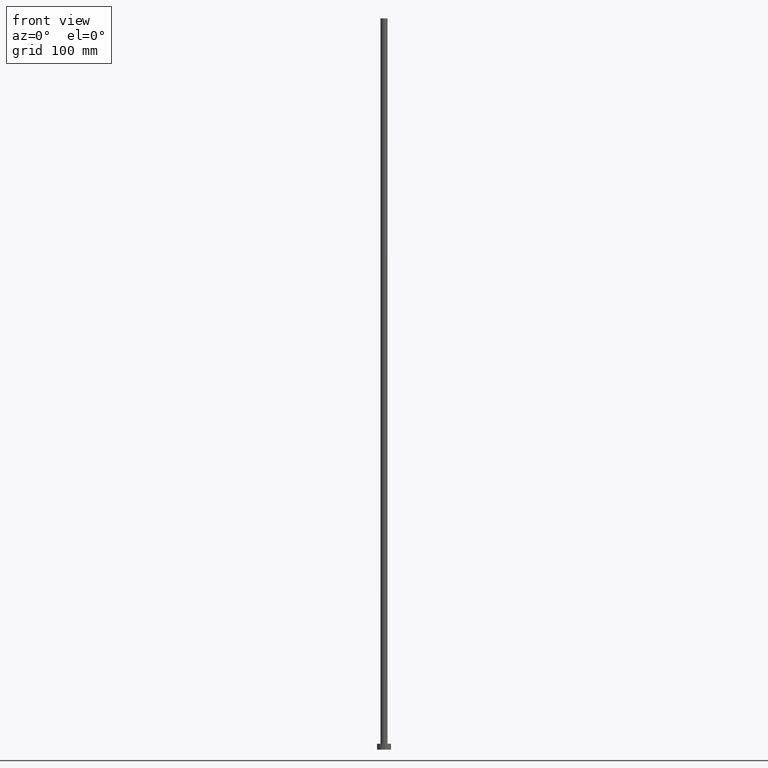
[diagram: clean part render]
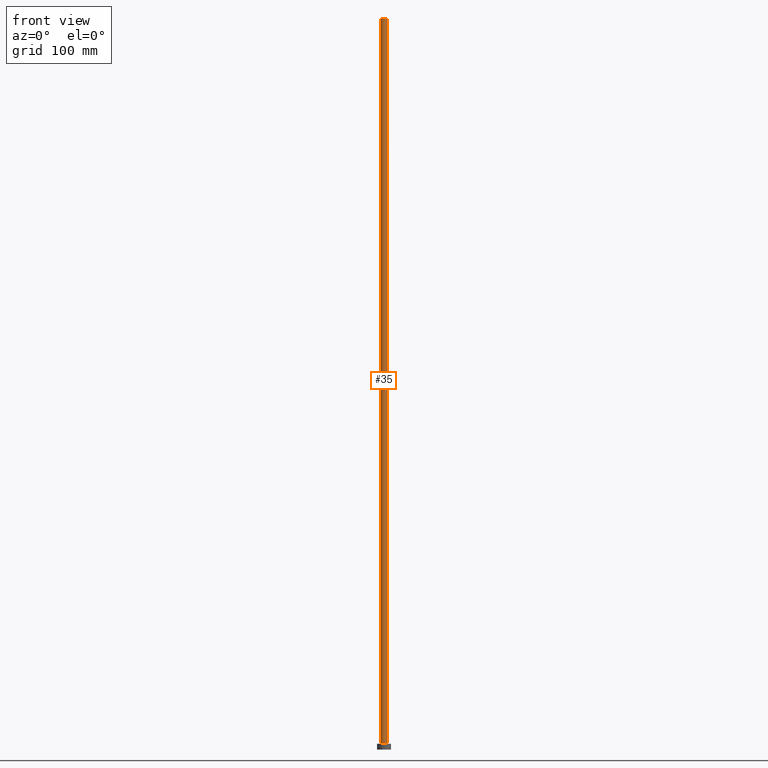
[diagram: same view with one face highlighted and labeled with its STEP entity id]
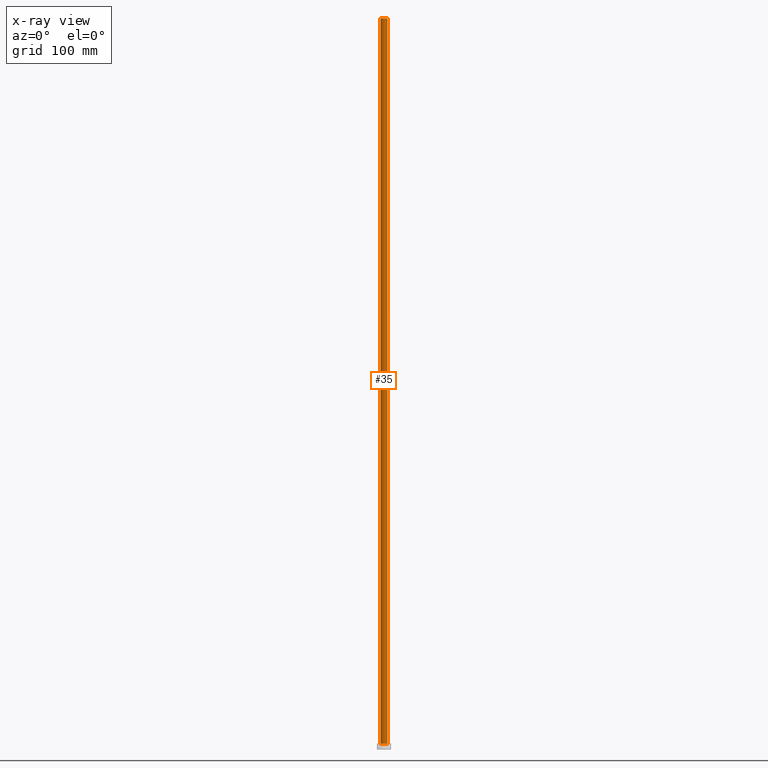
[diagram: x-ray of the same camera — body ghosted, the highlighted face saturated]
A machine part, front view. The second image highlights one B-rep face of the part: STEP entity #35.
The next image is the same camera in x-ray: the body ghosted, the highlighted face saturated — about 0% of this face is hidden behind the body in this view.
In plain terms, the highlighted cylindrical surface (edge-blend (fillet) strip) has radius 3 mm, axis along (-0, -0, -1).
Its self-contained STEP definition (entity closure, byte-faithful):
#4 = EDGE_CURVE ( 'NONE', #5, #91, #171, .T. ) ;
#5 = VERTEX_POINT ( 'NONE', #138 ) ;
#8 = CARTESIAN_POINT ( 'NONE',  ( -3.000000000000000444, 0.000000000000000000, 630.0000000000000000 ) ) ;
#20 = EDGE_CURVE ( 'NONE', #115, #5, #175, .T. ) ;
#25 = ORIENTED_EDGE ( 'NONE', *, *, #4, .T. ) ;
#26 = CARTESIAN_POINT ( 'NONE',  ( 3.000000000000000444, 3.673940397442060361E-16, 630.0000000000000000 ) ) ;
#27 = AXIS2_PLACEMENT_3D ( 'NONE', #216, #195, #101 ) ;
#28 = CARTESIAN_POINT ( 'NONE',  ( 0.000000000000000000, 0.000000000000000000, 630.0000000000000000 ) ) ;
#35 = ADVANCED_FACE ( 'NONE', ( #66 ), #142, .T. ) ;
#46 = DIRECTION ( 'NONE',  ( -0.000000000000000000, -0.000000000000000000, -1.000000000000000000 ) ) ;
#50 = LINE ( 'NONE', #26, #186 ) ;
#66 = FACE_OUTER_BOUND ( 'NONE', #220, .T. ) ;
#67 = AXIS2_PLACEMENT_3D ( 'NONE', #212, #46, #176 ) ;
#73 = CARTESIAN_POINT ( 'NONE',  ( 3.000000000000000444, 3.673940397442060361E-16, 5.000000000000000000 ) ) ;
#91 = VERTEX_POINT ( 'NONE', #73 ) ;
#92 = ORIENTED_EDGE ( 'NONE', *, *, #20, .T. ) ;
#93 = DIRECTION ( 'NONE',  ( -0.000000000000000000, -0.000000000000000000, -1.000000000000000000 ) ) ;
#101 = DIRECTION ( 'NONE',  ( 1.000000000000000000, 0.000000000000000000, 0.000000000000000000 ) ) ;
#102 = VERTEX_POINT ( 'NONE', #177 ) ;
#106 = DIRECTION ( 'NONE',  ( -0.000000000000000000, -0.000000000000000000, -1.000000000000000000 ) ) ;
#115 = VERTEX_POINT ( 'NONE', #8 ) ;
#122 = DIRECTION ( 'NONE',  ( 1.000000000000000000, 0.000000000000000000, 0.000000000000000000 ) ) ;
#136 = ORIENTED_EDGE ( 'NONE', *, *, #234, .F. ) ;
#138 = CARTESIAN_POINT ( 'NONE',  ( -3.000000000000000444, 0.000000000000000000, 5.000000000000000000 ) ) ;
#142 = CYLINDRICAL_SURFACE ( 'NONE', #67, 3.000000000000000444 ) ;
#171 = CIRCLE ( 'NONE', #27, 3.000000000000000444 ) ;
#175 = LINE ( 'NONE', #242, #237 ) ;
#176 = DIRECTION ( 'NONE',  ( -1.000000000000000000, 0.000000000000000000, 0.000000000000000000 ) ) ;
#177 = CARTESIAN_POINT ( 'NONE',  ( 3.000000000000000444, 3.673940397442060361E-16, 630.0000000000000000 ) ) ;
#186 = VECTOR ( 'NONE', #106, 1000.000000000000000 ) ;
#195 = DIRECTION ( 'NONE',  ( 0.000000000000000000, 0.000000000000000000, 1.000000000000000000 ) ) ;
#212 = CARTESIAN_POINT ( 'NONE',  ( 0.000000000000000000, 0.000000000000000000, 630.0000000000000000 ) ) ;
#216 = CARTESIAN_POINT ( 'NONE',  ( 0.000000000000000000, 0.000000000000000000, 5.000000000000000000 ) ) ;
#218 = ORIENTED_EDGE ( 'NONE', *, *, #246, .F. ) ;
#220 = EDGE_LOOP ( 'NONE', ( #218, #136, #92, #25 ) ) ;
#234 = EDGE_CURVE ( 'NONE', #115, #102, #249, .T. ) ;
#237 = VECTOR ( 'NONE', #93, 1000.000000000000000 ) ;
#242 = CARTESIAN_POINT ( 'NONE',  ( -3.000000000000000444, 0.000000000000000000, 630.0000000000000000 ) ) ;
#246 = EDGE_CURVE ( 'NONE', #102, #91, #50, .T. ) ;
#248 = DIRECTION ( 'NONE',  ( 0.000000000000000000, 0.000000000000000000, 1.000000000000000000 ) ) ;
#249 = CIRCLE ( 'NONE', #253, 3.000000000000000444 ) ;
#253 = AXIS2_PLACEMENT_3D ( 'NONE', #28, #248, #122 ) ;